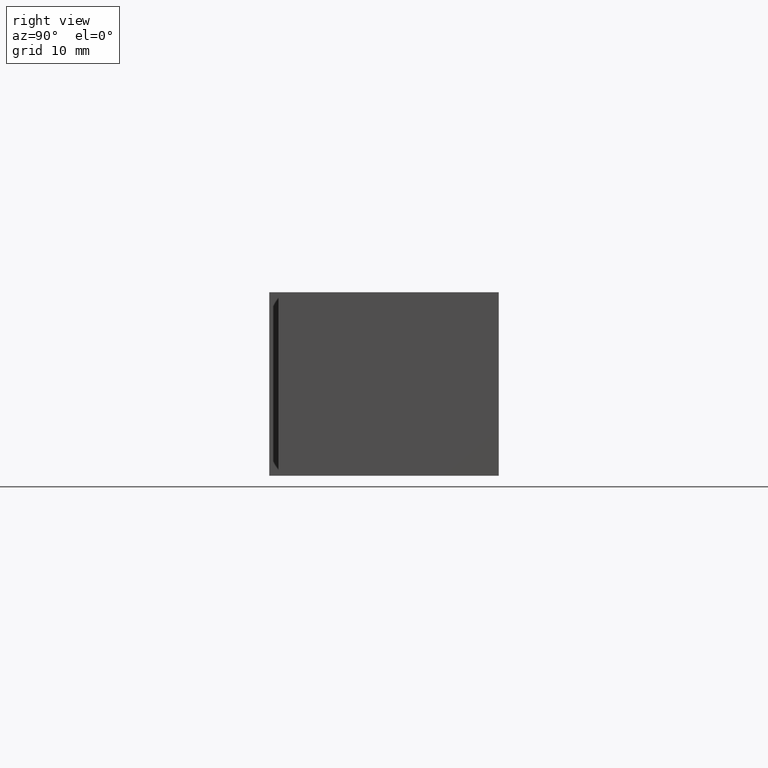
[diagram: clean part render]
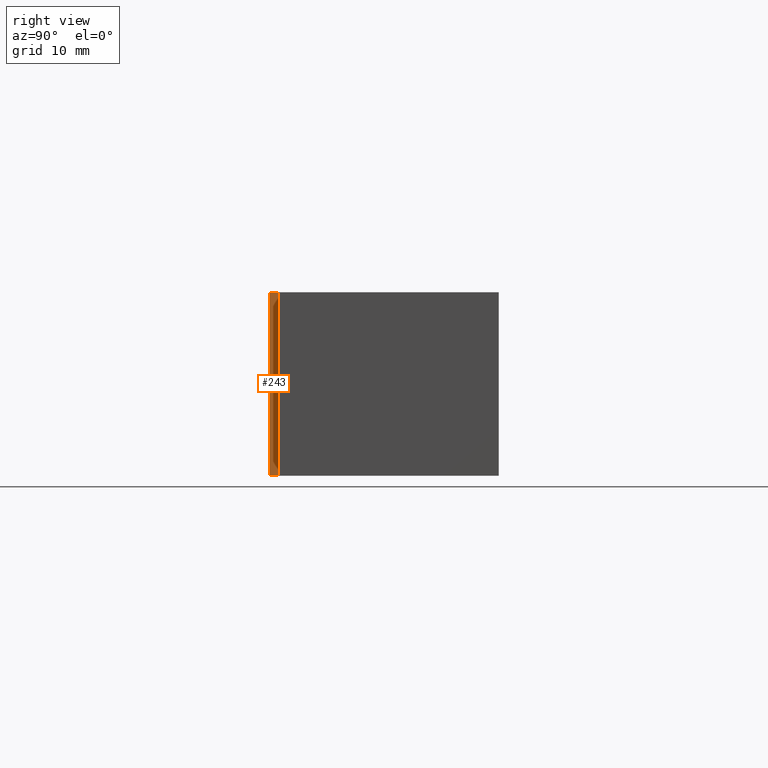
[diagram: same view with one face highlighted and labeled with its STEP entity id]
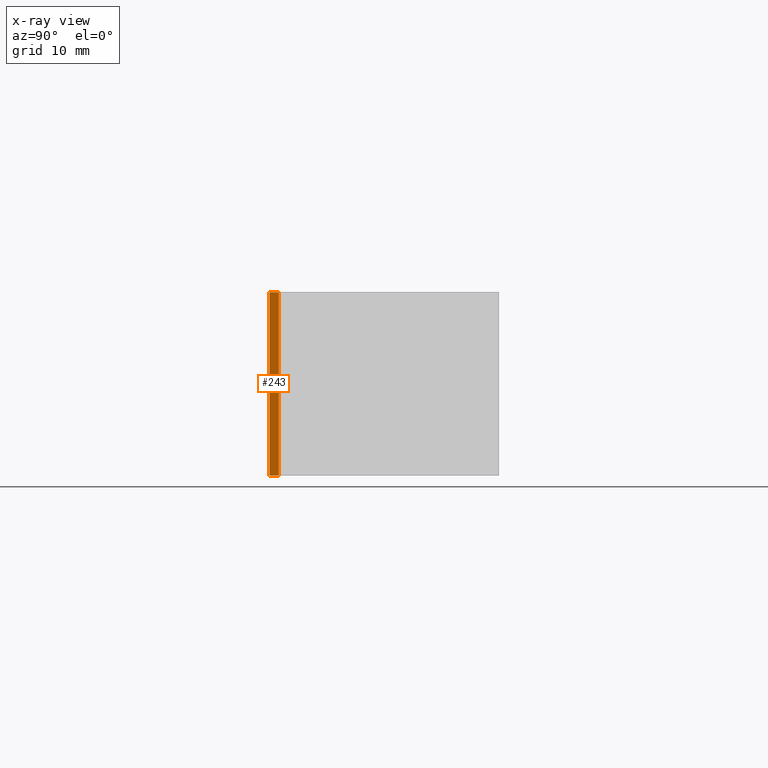
[diagram: x-ray of the same camera — body ghosted, the highlighted face saturated]
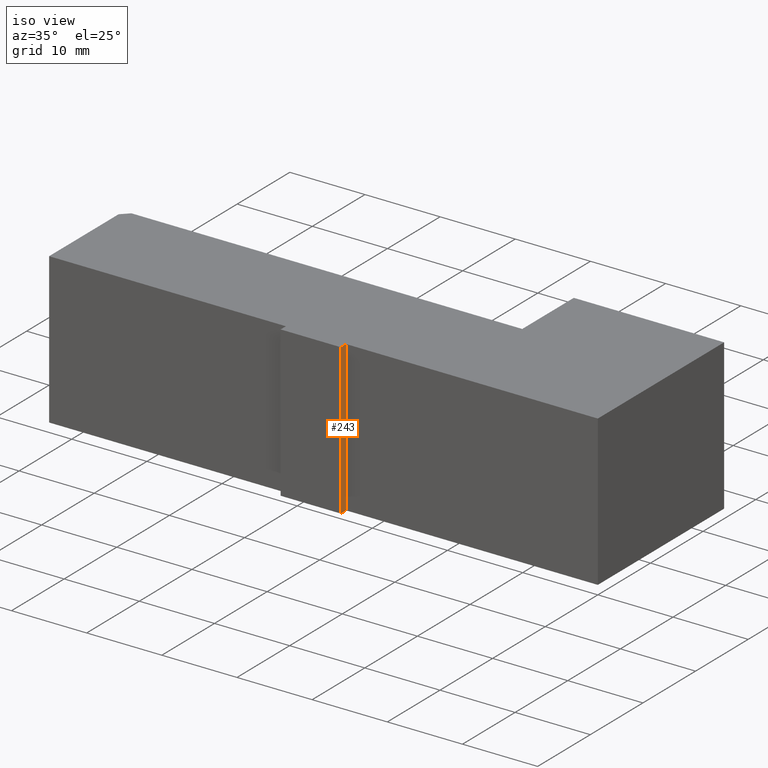
[diagram: same view with one face highlighted and labeled with its STEP entity id]
A machine part, right view. The second image highlights one B-rep face of the part: STEP entity #243.
The next image is the same camera in x-ray: the body ghosted, the highlighted face saturated — about 0% of this face is hidden behind the body in this view.
A second angle (iso view) of the same face is appended — the face is thin or edge-on in the first view.
In plain terms, the highlighted planar face has unit normal (1, 0, 0).
Its self-contained STEP definition (entity closure, byte-faithful):
#17=FACE_OUTER_BOUND('',#30,.T.);
#30=EDGE_LOOP('',(#174,#175,#176,#177));
#44=LINE('',#360,#77);
#53=LINE('',#379,#86);
#54=LINE('',#380,#87);
#55=LINE('',#381,#88);
#77=VECTOR('',#297,10.);
#86=VECTOR('',#308,10.);
#87=VECTOR('',#309,10.);
#88=VECTOR('',#310,10.);
#110=VERTEX_POINT('',#357);
#111=VERTEX_POINT('',#359);
#119=VERTEX_POINT('',#377);
#120=VERTEX_POINT('',#378);
#132=EDGE_CURVE('',#111,#110,#44,.T.);
#141=EDGE_CURVE('',#119,#120,#53,.T.);
#142=EDGE_CURVE('',#120,#111,#54,.T.);
#143=EDGE_CURVE('',#119,#110,#55,.T.);
#174=ORIENTED_EDGE('',*,*,#141,.T.);
#175=ORIENTED_EDGE('',*,*,#142,.T.);
#176=ORIENTED_EDGE('',*,*,#132,.T.);
#177=ORIENTED_EDGE('',*,*,#143,.F.);
#230=PLANE('',#279);
#243=ADVANCED_FACE('',(#17),#230,.T.);
#279=AXIS2_PLACEMENT_3D('',#376,#306,#307);
#297=DIRECTION('',(0.,1.,0.));
#306=DIRECTION('center_axis',(1.,0.,0.));
#307=DIRECTION('ref_axis',(0.,0.,-1.));
#308=DIRECTION('',(0.,-1.,0.));
#309=DIRECTION('',(0.,0.,-1.));
#310=DIRECTION('',(0.,0.,-1.));
#357=CARTESIAN_POINT('',(-33.5,-2.25514051876985E-15,-10.));
#359=CARTESIAN_POINT('',(-33.5,-1.,-10.));
#360=CARTESIAN_POINT('',(-33.5,-2.25514051876985E-15,-10.));
#376=CARTESIAN_POINT('Origin',(-33.5,-2.25514051876985E-15,0.));
#377=CARTESIAN_POINT('',(-33.5,-2.25514051876985E-15,10.));
#378=CARTESIAN_POINT('',(-33.5,-1.,10.));
#379=CARTESIAN_POINT('',(-33.5,-2.25514051876985E-15,10.));
#380=CARTESIAN_POINT('',(-33.5,-1.,0.));
#381=CARTESIAN_POINT('',(-33.5,-2.25514051876985E-15,0.));